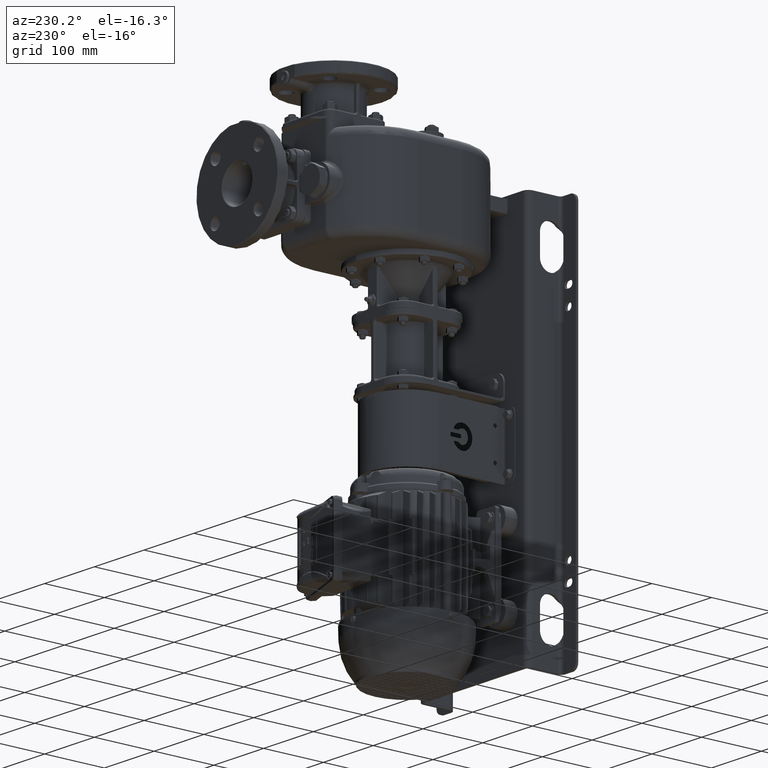
[diagram: clean part render]
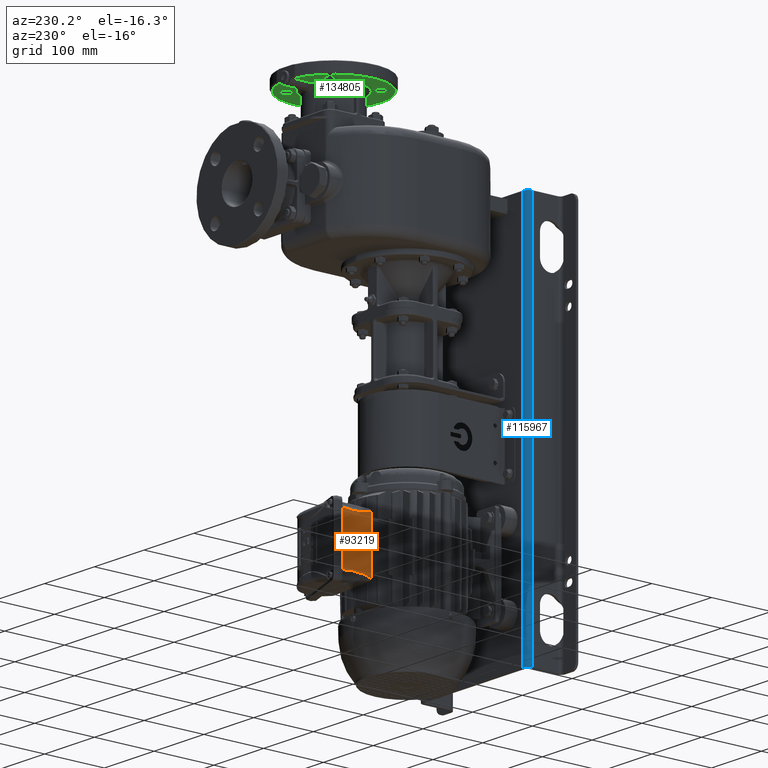
[diagram: same view with three faces highlighted in distinct colors, each labeled with its STEP entity id]
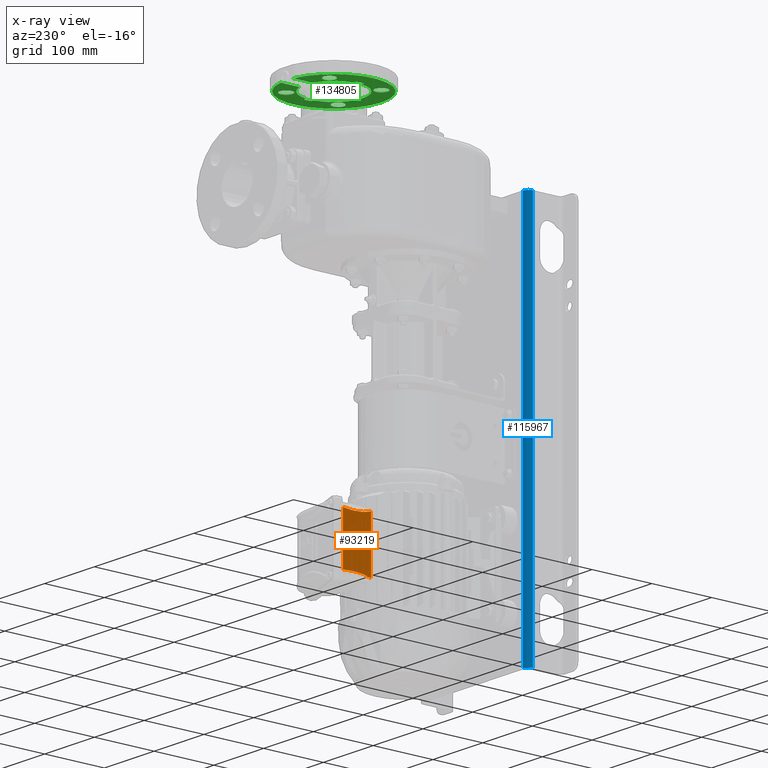
[diagram: x-ray of the same camera — body ghosted, the three highlighted faces saturated]
A machine part, auxiliary view with three faces highlighted in distinct colors.
The next image is the same camera in x-ray (body ghosted, the three faces saturated) — at least one of them is partly hidden behind the body in this view.
Their STEP definitions:

[orange] entity #93219 — the highlighted planar face has unit normal (-1, 0, 0).
#4186=DIRECTION('',(0.E0,9.865492233164E-1,1.634644608890E-1));
#4187=VECTOR('',#4186,7.681862748129E-1);
#4188=CARTESIAN_POINT('',(-4.348E1,2.527013099425E2,-4.441214358079E2));
#4189=LINE('',#4188,#4187);
#4190=CARTESIAN_POINT('',(-4.347999999998E1,2.065E2,-4.412552151720E2));
#4191=CARTESIAN_POINT('',(-4.347999999998E1,2.076094498195E2,
-4.416862780840E2));
#4192=CARTESIAN_POINT('',(-4.348000000001E1,2.102931093731E2,
-4.425807486587E2));
#4193=CARTESIAN_POINT('',(-4.347999999999E1,2.168722020423E2,
-4.441512190966E2));
#4194=CARTESIAN_POINT('',(-4.348E1,2.271078915047E2,-4.454509881633E2));
#4195=CARTESIAN_POINT('',(-4.348E1,2.382191800312E2,-4.455778499987E2));
#4196=CARTESIAN_POINT('',(-4.348E1,2.467670747480E2,-4.449685206351E2));
#4197=CARTESIAN_POINT('',(-4.348E1,2.507874771703E2,-4.444385448126E2));
#4198=CARTESIAN_POINT('',(-4.348E1,2.527013099425E2,-4.441214358079E2));
#4200=CARTESIAN_POINT('',(-4.348E1,2.527013099425E2,-5.278785641921E2));
#4201=CARTESIAN_POINT('',(-4.348E1,2.507874771703E2,-5.275614551874E2));
#4202=CARTESIAN_POINT('',(-4.348E1,2.467670747480E2,-5.270314793649E2));
#4203=CARTESIAN_POINT('',(-4.348E1,2.382191800312E2,-5.264221500013E2));
#4204=CARTESIAN_POINT('',(-4.348E1,2.271078915047E2,-5.265490118367E2));
#4205=CARTESIAN_POINT('',(-4.347999999999E1,2.168722020423E2,
-5.278487809034E2));
#4206=CARTESIAN_POINT('',(-4.348000000001E1,2.102931093731E2,
-5.294192513413E2));
#4207=CARTESIAN_POINT('',(-4.347999999998E1,2.076094498195E2,
-5.303137219160E2));
#4208=CARTESIAN_POINT('',(-4.347999999998E1,2.065E2,-5.307447848280E2));
#4210=DIRECTION('',(0.E0,-9.865492233164E-1,1.634644608890E-1));
#4211=VECTOR('',#4210,7.681862748129E-1);
#4212=CARTESIAN_POINT('',(-4.348E1,2.534591635153E2,-5.280041353474E2));
#4213=LINE('',#4212,#4211);
#4245=CARTESIAN_POINT('',(-4.347999999998E1,2.065E2,-4.412552151720E2));
#4568=CARTESIAN_POINT('',(-4.347999999998E1,2.065E2,-5.307447848280E2));
#4613=DIRECTION('',(0.E0,0.E0,-1.E0));
#4614=VECTOR('',#4613,8.948956965594E1);
#4615=CARTESIAN_POINT('',(-4.347999999998E1,2.065E2,-4.412552151720E2));
#4616=LINE('',#4615,#4614);
#77984=DIRECTION('',(0.E0,0.E0,1.E0));
#77985=VECTOR('',#77984,8.400827069473E1);
#77986=CARTESIAN_POINT('',(-4.348E1,2.534591635153E2,-5.280041353474E2));
#77987=LINE('',#77986,#77985);
#85843=VERTEX_POINT('',#4245);
#85848=VERTEX_POINT('',#4568);
#85856=CARTESIAN_POINT('',(-4.348E1,2.534591635153E2,-5.280041353474E2));
#85857=CARTESIAN_POINT('',(-4.348E1,2.527013099425E2,-5.278785641921E2));
#85858=VERTEX_POINT('',#85856);
#85859=VERTEX_POINT('',#85857);
#85865=CARTESIAN_POINT('',(-4.348E1,2.527013099425E2,-4.441214358079E2));
#85866=CARTESIAN_POINT('',(-4.348E1,2.534591635153E2,-4.439958646526E2));
#85867=VERTEX_POINT('',#85865);
#85868=VERTEX_POINT('',#85866);
#93201=CARTESIAN_POINT('',(-4.348E1,2.065E2,-4.373333464118E2));
#93202=DIRECTION('',(-1.E0,0.E0,0.E0));
#93203=DIRECTION('',(0.E0,0.E0,1.E0));
#93204=AXIS2_PLACEMENT_3D('',#93201,#93202,#93203);
#93205=PLANE('',#93204);
#93207=ORIENTED_EDGE('',*,*,#93206,.F.);
#93209=ORIENTED_EDGE('',*,*,#93208,.F.);
#93211=ORIENTED_EDGE('',*,*,#93210,.T.);
#93213=ORIENTED_EDGE('',*,*,#93212,.F.);
#93214=ORIENTED_EDGE('',*,*,#93189,.F.);
#93216=ORIENTED_EDGE('',*,*,#93215,.T.);
#93217=EDGE_LOOP('',(#93207,#93209,#93211,#93213,#93214,#93216));
#93218=FACE_OUTER_BOUND('',#93217,.F.);
#93219=ADVANCED_FACE('',(#93218),#93205,.T.);
#4199=B_SPLINE_CURVE_WITH_KNOTS('',3,(#4190,#4191,#4192,#4193,#4194,#4195,#4196,
#4197,#4198),.UNSPECIFIED.,.F.,.F.,(4,1,1,1,1,1,4),(0.E0,1.061381505493E-1,
2.338327004742E-1,4.892218003239E-1,7.446109001737E-1,8.723054500986E-1,1.E0),
.UNSPECIFIED.);
#4209=B_SPLINE_CURVE_WITH_KNOTS('',3,(#4200,#4201,#4202,#4203,#4204,#4205,#4206,
#4207,#4208),.UNSPECIFIED.,.F.,.F.,(4,1,1,1,1,1,4),(0.E0,1.276945499014E-1,
2.553890998263E-1,5.107781996761E-1,7.661672995258E-1,8.938618494507E-1,1.E0),
.UNSPECIFIED.);
#93189=EDGE_CURVE('',#85858,#85859,#4213,.T.);
#93206=EDGE_CURVE('',#85867,#85868,#4189,.T.);
#93208=EDGE_CURVE('',#85843,#85867,#4199,.T.);
#93210=EDGE_CURVE('',#85843,#85848,#4616,.T.);
#93212=EDGE_CURVE('',#85859,#85848,#4209,.T.);
#93215=EDGE_CURVE('',#85858,#85868,#77987,.T.);

[blue] entity #115967 — the highlighted cylindrical surface (edge-blend (fillet) strip) has radius 9 mm, axis along (0, 0, -1).
#29124=DIRECTION('',(0.E0,0.E0,-1.E0));
#29125=VECTOR('',#29124,6.4E2);
#29126=CARTESIAN_POINT('',(-1.01E2,0.E0,1.45E1));
#29127=LINE('',#29126,#29125);
#29224=CARTESIAN_POINT('',(-1.01E2,-9.E0,-6.255E2));
#29225=DIRECTION('',(0.E0,0.E0,-1.E0));
#29226=DIRECTION('',(-1.E0,0.E0,0.E0));
#29227=AXIS2_PLACEMENT_3D('',#29224,#29225,#29226);
#29238=DIRECTION('',(0.E0,0.E0,-1.E0));
#29239=VECTOR('',#29238,6.4E2);
#29240=CARTESIAN_POINT('',(-1.1E2,-9.E0,1.45E1));
#29241=LINE('',#29240,#29239);
#29242=CARTESIAN_POINT('',(-1.01E2,-9.E0,1.45E1));
#29243=DIRECTION('',(0.E0,0.E0,-1.E0));
#29244=DIRECTION('',(-1.E0,0.E0,0.E0));
#29245=AXIS2_PLACEMENT_3D('',#29242,#29243,#29244);
#87550=CARTESIAN_POINT('',(-1.1E2,-9.E0,1.45E1));
#87551=VERTEX_POINT('',#87550);
#87552=CARTESIAN_POINT('',(-1.01E2,0.E0,1.45E1));
#87553=VERTEX_POINT('',#87552);
#87566=CARTESIAN_POINT('',(-1.1E2,-9.E0,-6.255E2));
#87567=VERTEX_POINT('',#87566);
#87568=CARTESIAN_POINT('',(-1.01E2,0.E0,-6.255E2));
#87569=VERTEX_POINT('',#87568);
#115954=CARTESIAN_POINT('',(-1.01E2,-9.E0,1.45E1));
#115955=DIRECTION('',(0.E0,0.E0,-1.E0));
#115956=DIRECTION('',(-1.E0,0.E0,0.E0));
#115957=AXIS2_PLACEMENT_3D('',#115954,#115955,#115956);
#115958=CYLINDRICAL_SURFACE('',#115957,9.E0);
#115960=ORIENTED_EDGE('',*,*,#115959,.F.);
#115962=ORIENTED_EDGE('',*,*,#115961,.T.);
#115963=ORIENTED_EDGE('',*,*,#115944,.T.);
#115964=ORIENTED_EDGE('',*,*,#115784,.F.);
#115965=EDGE_LOOP('',(#115960,#115962,#115963,#115964));
#115966=FACE_OUTER_BOUND('',#115965,.F.);
#115967=ADVANCED_FACE('',(#115966),#115958,.T.);
#29228=CIRCLE('',#29227,9.E0);
#29246=CIRCLE('',#29245,9.E0);
#115784=EDGE_CURVE('',#87553,#87569,#29127,.T.);
#115944=EDGE_CURVE('',#87567,#87569,#29228,.T.);
#115959=EDGE_CURVE('',#87551,#87553,#29246,.T.);
#115961=EDGE_CURVE('',#87551,#87567,#29241,.T.);

[green] entity #134805 — the highlighted planar face has unit normal (0, 0, 1).
#47797=DIRECTION('',(-1.071307492459E-13,-1.E0,-3.247469231926E-8));
#47798=VECTOR('',#47797,3.167010020128E1);
#47799=CARTESIAN_POINT('',(2.168857754045E1,3.034808893935E2,1.299999994207E2));
#47800=LINE('',#47799,#47798);
#47801=DIRECTION('',(1.E0,0.E0,3.038040331562E-7));
#47802=VECTOR('',#47801,4.872565059420E0);
#47803=CARTESIAN_POINT('',(5.712743494058E1,2.31E2,1.299999985197E2));
#47804=LINE('',#47803,#47802);
#47805=DIRECTION('',(0.E0,-1.E0,0.E0));
#47806=VECTOR('',#47805,1.2E1);
#47807=CARTESIAN_POINT('',(6.2E1,2.31E2,1.3E2));
#47808=LINE('',#47807,#47806);
#47809=DIRECTION('',(-1.E0,0.E0,-3.038219868936E-7));
#47810=VECTOR('',#47809,4.872565063593E0);
#47811=CARTESIAN_POINT('',(6.2E1,2.19E2,1.3E2));
#47812=LINE('',#47811,#47810);
#47813=DIRECTION('',(-1.E0,0.E0,3.038040270838E-7));
#47814=VECTOR('',#47813,4.872565063259E0);
#47815=CARTESIAN_POINT('',(-3.912743493674E1,2.19E2,1.299999985197E2));
#47816=LINE('',#47815,#47814);
#47817=DIRECTION('',(0.E0,1.E0,0.E0));
#47818=VECTOR('',#47817,1.2E1);
#47819=CARTESIAN_POINT('',(-4.4E1,2.19E2,1.3E2));
#47820=LINE('',#47819,#47818);
#47821=DIRECTION('',(1.E0,0.E0,-3.038219871341E-7));
#47822=VECTOR('',#47821,4.872565059736E0);
#47823=CARTESIAN_POINT('',(-4.4E1,2.31E2,1.3E2));
#47824=LINE('',#47823,#47822);
#47825=DIRECTION('',(-1.029520891320E-13,1.E0,3.218803152413E-8));
#47826=VECTOR('',#47825,3.167010020105E1);
#47827=CARTESIAN_POINT('',(-3.688577540447E0,2.718107891925E2,
1.299999983997E2));
#47828=LINE('',#47827,#47826);
#47829=DIRECTION('',(7.071067811865E-1,7.071067811866E-1,0.E0));
#47830=VECTOR('',#47829,2.E0);
#47831=CARTESIAN_POINT('',(5.849747468306E1,2.610624458405E2,1.3E2));
#47832=LINE('',#47831,#47830);
#47833=CARTESIAN_POINT('',(5.177996026179E1,2.677799602618E2,1.3E2));
#47834=DIRECTION('',(0.E0,0.E0,1.E0));
#47835=DIRECTION('',(-7.071067811866E-1,7.071067811865E-1,0.E0));
#47836=AXIS2_PLACEMENT_3D('',#47833,#47834,#47835);
#47838=DIRECTION('',(-7.071067811865E-1,-7.071067811865E-1,0.E0));
#47839=VECTOR('',#47838,2.E0);
#47840=CARTESIAN_POINT('',(4.647665940289E1,2.759116882454E2,1.3E2));
#47841=LINE('',#47840,#47839);
#47842=CARTESIAN_POINT('',(5.319417382416E1,2.691941738242E2,1.3E2));
#47843=DIRECTION('',(0.E0,0.E0,1.E0));
#47844=DIRECTION('',(7.071067811865E-1,-7.071067811866E-1,0.E0));
#47845=AXIS2_PLACEMENT_3D('',#47842,#47843,#47844);
#47847=DIRECTION('',(-7.071067811865E-1,7.071067811865E-1,0.E0));
#47848=VECTOR('',#47847,2.E0);
#47849=CARTESIAN_POINT('',(-2.706244584051E1,2.744974746831E2,1.3E2));
#47850=LINE('',#47849,#47848);
#47851=CARTESIAN_POINT('',(-3.377996026179E1,2.677799602618E2,1.3E2));
#47852=DIRECTION('',(0.E0,0.E0,1.E0));
#47853=DIRECTION('',(-7.071067811865E-1,-7.071067811866E-1,0.E0));
#47854=AXIS2_PLACEMENT_3D('',#47851,#47852,#47853);
#47856=DIRECTION('',(7.071067811866E-1,-7.071067811865E-1,0.E0));
#47857=VECTOR('',#47856,2.E0);
#47858=CARTESIAN_POINT('',(-4.191168824543E1,2.624766594029E2,1.3E2));
#47859=LINE('',#47858,#47857);
#47860=CARTESIAN_POINT('',(-3.519417382416E1,2.691941738242E2,1.3E2));
#47861=DIRECTION('',(0.E0,0.E0,1.E0));
#47862=DIRECTION('',(7.071067811866E-1,7.071067811865E-1,0.E0));
#47863=AXIS2_PLACEMENT_3D('',#47860,#47861,#47862);
#47865=DIRECTION('',(-7.071067811866E-1,-7.071067811865E-1,0.E0));
#47866=VECTOR('',#47865,2.E0);
#47867=CARTESIAN_POINT('',(-4.049747468306E1,1.889375541595E2,1.3E2));
#47868=LINE('',#47867,#47866);
#47869=CARTESIAN_POINT('',(-3.377996026179E1,1.822200397382E2,1.3E2));
#47870=DIRECTION('',(0.E0,0.E0,1.E0));
#47871=DIRECTION('',(7.071067811866E-1,-7.071067811865E-1,0.E0));
#47872=AXIS2_PLACEMENT_3D('',#47869,#47870,#47871);
#47874=DIRECTION('',(7.071067811865E-1,7.071067811866E-1,0.E0));
#47875=VECTOR('',#47874,2.E0);
#47876=CARTESIAN_POINT('',(-2.847665940289E1,1.740883117546E2,1.3E2));
#47877=LINE('',#47876,#47875);
#47878=CARTESIAN_POINT('',(-3.519417382416E1,1.808058261758E2,1.3E2));
#47879=DIRECTION('',(0.E0,0.E0,1.E0));
#47880=DIRECTION('',(-7.071067811865E-1,7.071067811865E-1,0.E0));
#47881=AXIS2_PLACEMENT_3D('',#47878,#47879,#47880);
#47883=DIRECTION('',(7.071067811865E-1,-7.071067811866E-1,0.E0));
#47884=VECTOR('',#47883,2.E0);
#47885=CARTESIAN_POINT('',(4.506244584051E1,1.755025253169E2,1.3E2));
#47886=LINE('',#47885,#47884);
#47887=CARTESIAN_POINT('',(5.177996026179E1,1.822200397382E2,1.3E2));
#47888=DIRECTION('',(0.E0,0.E0,1.E0));
#47889=DIRECTION('',(7.071067811865E-1,7.071067811866E-1,0.E0));
#47890=AXIS2_PLACEMENT_3D('',#47887,#47888,#47889);
#47892=DIRECTION('',(-7.071067811866E-1,7.071067811865E-1,0.E0));
#47893=VECTOR('',#47892,2.E0);
#47894=CARTESIAN_POINT('',(5.991168824543E1,1.875233405971E2,1.3E2));
#47895=LINE('',#47894,#47893);
#47896=CARTESIAN_POINT('',(5.319417382416E1,1.808058261758E2,1.3E2));
#47897=DIRECTION('',(0.E0,0.E0,1.E0));
#47898=DIRECTION('',(-7.071067811865E-1,-7.071067811865E-1,0.E0));
#47899=AXIS2_PLACEMENT_3D('',#47896,#47897,#47898);
#47937=CARTESIAN_POINT('',(9.E0,2.25E2,1.3E2));
#47938=DIRECTION('',(0.E0,0.E0,-1.E0));
#47939=DIRECTION('',(1.596047489365E-1,9.871809986608E-1,0.E0));
#47940=AXIS2_PLACEMENT_3D('',#47937,#47938,#47939);
#48886=CARTESIAN_POINT('',(-3.912743494026E1,2.31E2,1.299999985196E2));
#48965=CARTESIAN_POINT('',(-3.688577540447E0,2.718107891925E2,
1.299999983997E2));
#48967=CARTESIAN_POINT('',(9.E0,2.25E2,1.3E2));
#48968=DIRECTION('',(0.E0,0.E0,1.E0));
#48969=DIRECTION('',(-2.616201588510E-1,9.651709136121E-1,0.E0));
#48970=AXIS2_PLACEMENT_3D('',#48967,#48968,#48969);
#50789=CARTESIAN_POINT('',(5.712743493641E1,2.19E2,1.299999985196E2));
#50867=CARTESIAN_POINT('',(-3.912743493674E1,2.19E2,1.299999985197E2));
#50869=CARTESIAN_POINT('',(9.E0,2.25E2,1.3E2));
#50870=DIRECTION('',(0.E0,0.E0,1.E0));
#50871=DIRECTION('',(-9.923182474072E-1,-1.237113408813E-1,0.E0));
#50872=AXIS2_PLACEMENT_3D('',#50869,#50870,#50871);
#51047=CARTESIAN_POINT('',(5.712743494058E1,2.31E2,1.299999985197E2));
#51049=CARTESIAN_POINT('',(9.E0,2.25E2,1.3E2));
#51050=DIRECTION('',(0.E0,0.E0,1.E0));
#51051=DIRECTION('',(9.923182474121E-1,1.237113408424E-1,0.E0));
#51052=AXIS2_PLACEMENT_3D('',#51049,#51050,#51051);
#51054=CARTESIAN_POINT('',(2.168857754045E1,2.718107891923E2,1.299999983922E2));
#80047=CARTESIAN_POINT('',(5.849747468306E1,2.610624458405E2,1.3E2));
#80048=VERTEX_POINT('',#80047);
#80049=CARTESIAN_POINT('',(5.991168824543E1,2.624766594029E2,1.3E2));
#80050=VERTEX_POINT('',#80049);
#80051=CARTESIAN_POINT('',(4.647665940289E1,2.759116882454E2,1.3E2));
#80052=VERTEX_POINT('',#80051);
#80053=CARTESIAN_POINT('',(4.506244584051E1,2.744974746831E2,1.3E2));
#80054=VERTEX_POINT('',#80053);
#80063=CARTESIAN_POINT('',(-2.706244584051E1,2.744974746831E2,1.3E2));
#80064=VERTEX_POINT('',#80063);
#80065=CARTESIAN_POINT('',(-2.847665940289E1,2.759116882454E2,1.3E2));
#80066=VERTEX_POINT('',#80065);
#80067=CARTESIAN_POINT('',(-4.191168824543E1,2.624766594029E2,1.3E2));
#80068=VERTEX_POINT('',#80067);
#80069=CARTESIAN_POINT('',(-4.049747468306E1,2.610624458405E2,1.3E2));
#80070=VERTEX_POINT('',#80069);
#80079=CARTESIAN_POINT('',(-4.049747468306E1,1.889375541595E2,1.3E2));
#80080=VERTEX_POINT('',#80079);
#80081=CARTESIAN_POINT('',(-4.191168824543E1,1.875233405971E2,1.3E2));
#80082=VERTEX_POINT('',#80081);
#80083=CARTESIAN_POINT('',(-2.847665940289E1,1.740883117546E2,1.3E2));
#80084=VERTEX_POINT('',#80083);
#80085=CARTESIAN_POINT('',(-2.706244584051E1,1.755025253169E2,1.3E2));
#80086=VERTEX_POINT('',#80085);
#80095=CARTESIAN_POINT('',(4.506244584051E1,1.755025253169E2,1.3E2));
#80096=VERTEX_POINT('',#80095);
#80097=CARTESIAN_POINT('',(4.647665940289E1,1.740883117546E2,1.3E2));
#80098=VERTEX_POINT('',#80097);
#80099=CARTESIAN_POINT('',(5.991168824543E1,1.875233405971E2,1.3E2));
#80100=VERTEX_POINT('',#80099);
#80101=CARTESIAN_POINT('',(5.849747468306E1,1.889375541595E2,1.3E2));
#80102=VERTEX_POINT('',#80101);
#80108=VERTEX_POINT('',#48965);
#80113=VERTEX_POINT('',#51054);
#80125=VERTEX_POINT('',#51047);
#80136=VERTEX_POINT('',#50789);
#80147=VERTEX_POINT('',#50867);
#80158=VERTEX_POINT('',#48886);
#80239=CARTESIAN_POINT('',(-4.4E1,2.19E2,1.3E2));
#80240=CARTESIAN_POINT('',(-4.4E1,2.31E2,1.3E2));
#80241=VERTEX_POINT('',#80239);
#80242=VERTEX_POINT('',#80240);
#80243=CARTESIAN_POINT('',(6.2E1,2.31E2,1.3E2));
#80244=VERTEX_POINT('',#80243);
#80245=CARTESIAN_POINT('',(6.2E1,2.19E2,1.3E2));
#80246=VERTEX_POINT('',#80245);
#80257=CARTESIAN_POINT('',(2.168857754045E1,3.034808893935E2,1.3E2));
#80258=CARTESIAN_POINT('',(-3.688577540450E0,3.034808893935E2,1.3E2));
#80259=VERTEX_POINT('',#80257);
#80260=VERTEX_POINT('',#80258);
#134735=CARTESIAN_POINT('',(9.E0,2.25E2,1.3E2));
#134736=DIRECTION('',(0.E0,0.E0,1.E0));
#134737=DIRECTION('',(1.E0,0.E0,0.E0));
#134738=AXIS2_PLACEMENT_3D('',#134735,#134736,#134737);
#134739=PLANE('',#134738);
#134741=ORIENTED_EDGE('',*,*,#134740,.F.);
#134743=ORIENTED_EDGE('',*,*,#134742,.T.);
#134745=ORIENTED_EDGE('',*,*,#134744,.F.);
#134747=ORIENTED_EDGE('',*,*,#134746,.T.);
#134748=ORIENTED_EDGE('',*,*,#134722,.T.);
#134750=ORIENTED_EDGE('',*,*,#134749,.T.);
#134752=ORIENTED_EDGE('',*,*,#134751,.F.);
#134754=ORIENTED_EDGE('',*,*,#134753,.T.);
#134756=ORIENTED_EDGE('',*,*,#134755,.T.);
#134758=ORIENTED_EDGE('',*,*,#134757,.T.);
#134760=ORIENTED_EDGE('',*,*,#134759,.F.);
#134762=ORIENTED_EDGE('',*,*,#134761,.T.);
#134763=EDGE_LOOP('',(#134741,#134743,#134745,#134747,#134748,#134750,#134752,
#134754,#134756,#134758,#134760,#134762));
#134764=FACE_OUTER_BOUND('',#134763,.F.);
#134766=ORIENTED_EDGE('',*,*,#134765,.F.);
#134768=ORIENTED_EDGE('',*,*,#134767,.F.);
#134770=ORIENTED_EDGE('',*,*,#134769,.F.);
#134772=ORIENTED_EDGE('',*,*,#134771,.F.);
#134773=EDGE_LOOP('',(#134766,#134768,#134770,#134772));
#134774=FACE_BOUND('',#134773,.F.);
#134776=ORIENTED_EDGE('',*,*,#134775,.F.);
#134778=ORIENTED_EDGE('',*,*,#134777,.F.);
#134780=ORIENTED_EDGE('',*,*,#134779,.F.);
#134782=ORIENTED_EDGE('',*,*,#134781,.F.);
#134783=EDGE_LOOP('',(#134776,#134778,#134780,#134782));
#134784=FACE_BOUND('',#134783,.F.);
#134786=ORIENTED_EDGE('',*,*,#134785,.F.);
#134788=ORIENTED_EDGE('',*,*,#134787,.F.);
#134790=ORIENTED_EDGE('',*,*,#134789,.F.);
#134792=ORIENTED_EDGE('',*,*,#134791,.F.);
#134793=EDGE_LOOP('',(#134786,#134788,#134790,#134792));
#134794=FACE_BOUND('',#134793,.F.);
#134796=ORIENTED_EDGE('',*,*,#134795,.F.);
#134798=ORIENTED_EDGE('',*,*,#134797,.F.);
#134800=ORIENTED_EDGE('',*,*,#134799,.F.);
#134802=ORIENTED_EDGE('',*,*,#134801,.F.);
#134803=EDGE_LOOP('',(#134796,#134798,#134800,#134802));
#134804=FACE_BOUND('',#134803,.F.);
#134805=ADVANCED_FACE('',(#134764,#134774,#134784,#134794,#134804),#134739,.F.);
#47837=CIRCLE('',#47836,9.5E0);
#47846=CIRCLE('',#47845,9.5E0);
#47855=CIRCLE('',#47854,9.5E0);
#47864=CIRCLE('',#47863,9.5E0);
#47873=CIRCLE('',#47872,9.5E0);
#47882=CIRCLE('',#47881,9.5E0);
#47891=CIRCLE('',#47890,9.5E0);
#47900=CIRCLE('',#47899,9.5E0);
#47941=CIRCLE('',#47940,7.95E1);
#48971=CIRCLE('',#48970,4.85E1);
#50873=CIRCLE('',#50872,4.85E1);
#51053=CIRCLE('',#51052,4.85E1);
#134722=EDGE_CURVE('',#80244,#80246,#47808,.T.);
#134740=EDGE_CURVE('',#80259,#80260,#47941,.T.);
#134742=EDGE_CURVE('',#80259,#80113,#47800,.T.);
#134744=EDGE_CURVE('',#80125,#80113,#51053,.T.);
#134746=EDGE_CURVE('',#80125,#80244,#47804,.T.);
#134749=EDGE_CURVE('',#80246,#80136,#47812,.T.);
#134751=EDGE_CURVE('',#80147,#80136,#50873,.T.);
#134753=EDGE_CURVE('',#80147,#80241,#47816,.T.);
#134755=EDGE_CURVE('',#80241,#80242,#47820,.T.);
#134757=EDGE_CURVE('',#80242,#80158,#47824,.T.);
#134759=EDGE_CURVE('',#80108,#80158,#48971,.T.);
#134761=EDGE_CURVE('',#80108,#80260,#47828,.T.);
#134765=EDGE_CURVE('',#80048,#80050,#47832,.T.);
#134767=EDGE_CURVE('',#80054,#80048,#47837,.T.);
#134769=EDGE_CURVE('',#80052,#80054,#47841,.T.);
#134771=EDGE_CURVE('',#80050,#80052,#47846,.T.);
#134775=EDGE_CURVE('',#80064,#80066,#47850,.T.);
#134777=EDGE_CURVE('',#80070,#80064,#47855,.T.);
#134779=EDGE_CURVE('',#80068,#80070,#47859,.T.);
#134781=EDGE_CURVE('',#80066,#80068,#47864,.T.);
#134785=EDGE_CURVE('',#80080,#80082,#47868,.T.);
#134787=EDGE_CURVE('',#80086,#80080,#47873,.T.);
#134789=EDGE_CURVE('',#80084,#80086,#47877,.T.);
#134791=EDGE_CURVE('',#80082,#80084,#47882,.T.);
#134795=EDGE_CURVE('',#80096,#80098,#47886,.T.);
#134797=EDGE_CURVE('',#80102,#80096,#47891,.T.);
#134799=EDGE_CURVE('',#80100,#80102,#47895,.T.);
#134801=EDGE_CURVE('',#80098,#80100,#47900,.T.);